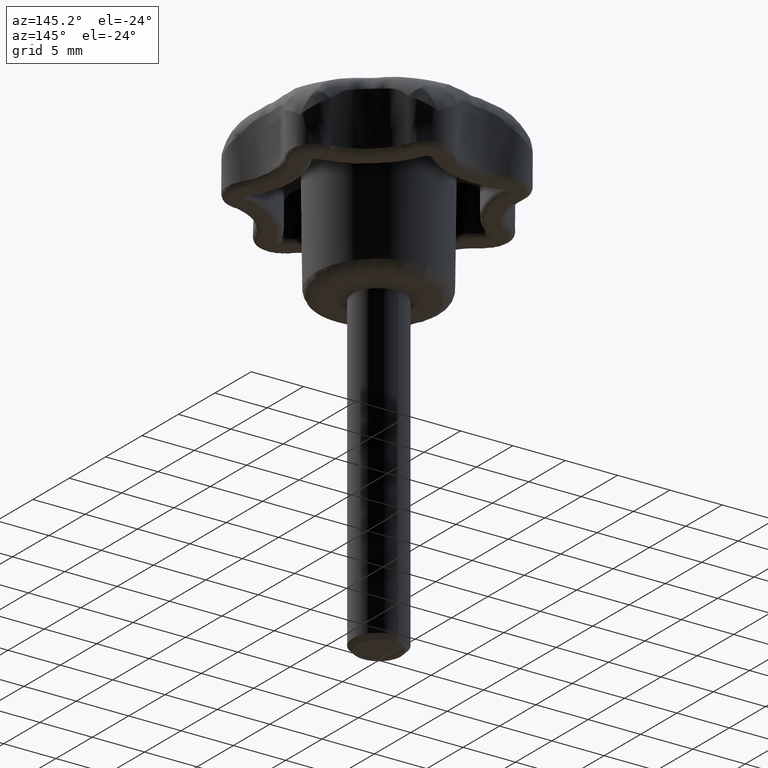
[diagram: clean part render]
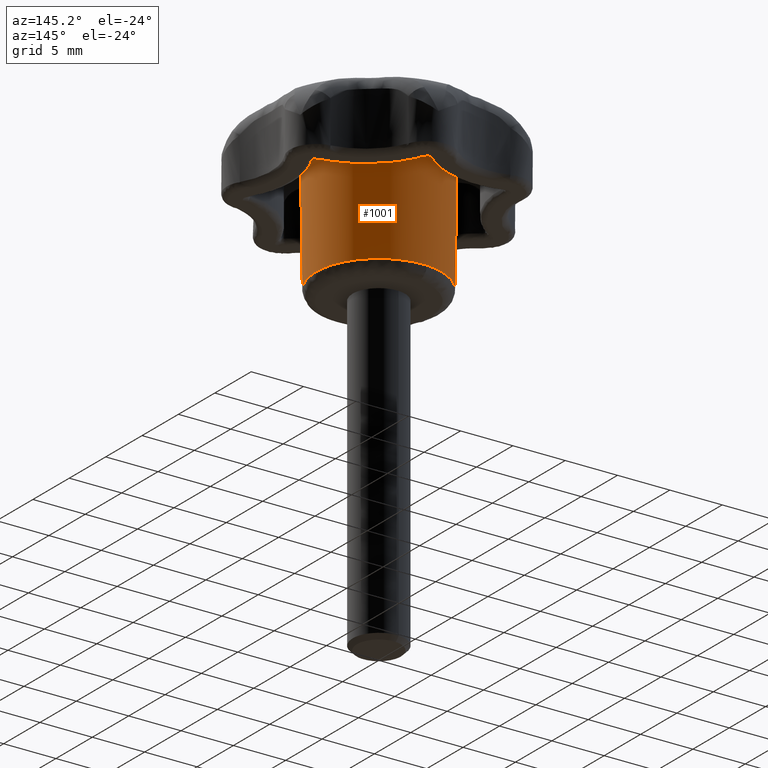
[diagram: same view with one face highlighted and labeled with its STEP entity id]
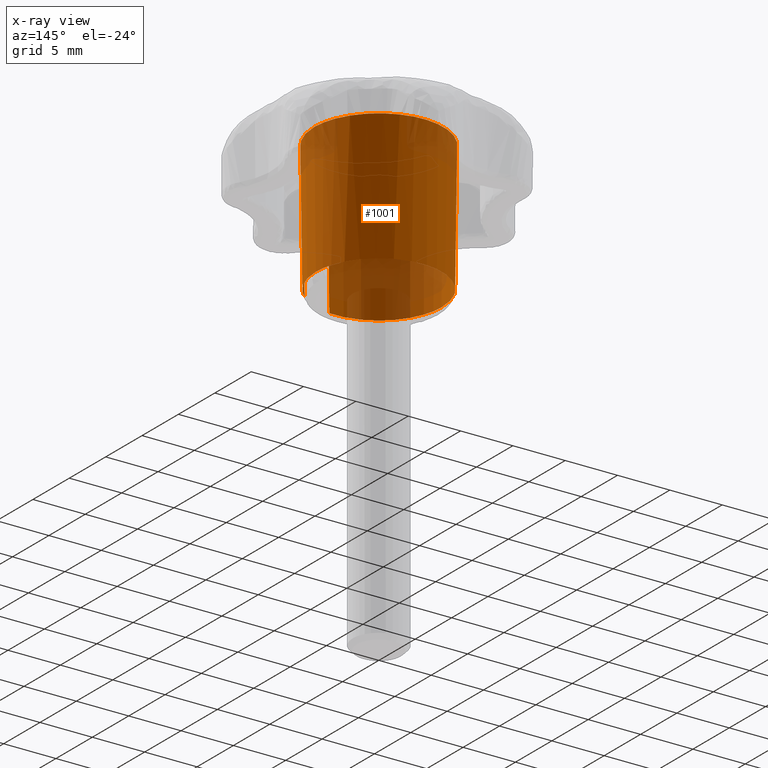
[diagram: x-ray of the same camera — body ghosted, the highlighted face saturated]
A machine part, auxiliary view. The second image highlights one B-rep face of the part: STEP entity #1001.
The next image is the same camera in x-ray: the body ghosted, the highlighted face saturated — about 29% of this face is hidden behind the body in this view.
In plain terms, the highlighted face is a freeform B-spline surface patch.
Its self-contained STEP definition (entity closure, byte-faithful):
#831=CARTESIAN_POINT('',(3.944172478707790,-4.532687497300083,-7.322148561508060));
#832=CARTESIAN_POINT('',(6.277231158324103,-2.502548459293557,-7.322148561508059));
#833=CARTESIAN_POINT('',(5.980811571360390,0.575886653655120,-7.322148561508059));
#834=CARTESIAN_POINT('',(5.404924917705270,6.556698225015510,-7.322148561508059));
#835=CARTESIAN_POINT('',(-0.575886653655120,5.980811571360390,-7.322148561508059));
#836=CARTESIAN_POINT('',(-6.556698225015510,5.404924917705270,-7.322148561508059));
#837=CARTESIAN_POINT('',(-5.980811571360390,-0.575886653655120,-7.322148561508059));
#838=CARTESIAN_POINT('',(-5.404924917705270,-6.556698225015510,-7.322148561508059));
#839=CARTESIAN_POINT('',(0.575886653655120,-5.980811571360390,-7.322148561508059));
#840=CARTESIAN_POINT('',(4.050949741576948,-4.655397132088043,5.690874260871853));
#841=CARTESIAN_POINT('',(6.447169355779006,-2.570297848074938,5.690874260871852));
#842=CARTESIAN_POINT('',(6.142725050746383,0.591477148475549,5.690874260871852));
#843=CARTESIAN_POINT('',(5.551247902270834,6.734202199221930,5.690874260871852));
#844=CARTESIAN_POINT('',(-0.591477148475549,6.142725050746383,5.690874260871852));
#845=CARTESIAN_POINT('',(-6.734202199221930,5.551247902270834,5.690874260871852));
#846=CARTESIAN_POINT('',(-6.142725050746383,-0.591477148475549,5.690874260871852));
#847=CARTESIAN_POINT('',(-5.551247902270834,-6.734202199221930,5.690874260871852));
#848=CARTESIAN_POINT('',(0.591477148475549,-6.142725050746383,5.690874260871852));
#856=(BOUNDED_SURFACE()B_SPLINE_SURFACE(2,1,((#831,#840),(#832,#841),(#833,#842),(#834,#843),(#835,#844),(#836,#845),(#837,#846),(#838,#847),(#839,#848)),.UNSPECIFIED.,.F.,.F.,.U.)B_SPLINE_SURFACE_WITH_KNOTS((3,2,2,2,3),(2,2),(0.0,6.134803480556286,16.359475948150099,26.584148415743911,36.808820883337717),(0.0,13.014039419569780),.UNSPECIFIED.)GEOMETRIC_REPRESENTATION_ITEM()RATIONAL_B_SPLINE_SURFACE(((0.859411254969543,0.859411254969543),(0.824264068711928,0.824264068711928),(1.0,1.0),(0.707106781186548,0.707106781186548),(1.0,1.0),(0.707106781186548,0.707106781186548),(1.0,1.0),(0.707106781186548,0.707106781186548),(1.0,1.0)))REPRESENTATION_ITEM('')SURFACE());
#857=CARTESIAN_POINT('',(6.012344000000111,0.0,-7.012498999999910));
#858=VERTEX_POINT('',#857);
#859=CARTESIAN_POINT('',(3.946712983802409,-4.535607674457760,-7.012499141193138));
#860=VERTEX_POINT('',#859);
#861=CARTESIAN_POINT('',(6.012344000000111,0.0,-7.012498999999910));
#862=CARTESIAN_POINT('',(6.012344000000110,-2.738174508418664,-7.012498999999910));
#863=CARTESIAN_POINT('',(3.946712983802409,-4.535607674457760,-7.012499141193138));
#871=(BOUNDED_CURVE()B_SPLINE_CURVE(2,(#861,#862,#863),.UNSPECIFIED.,.F.,.U.)B_SPLINE_CURVE_WITH_KNOTS((3,3),(0.500000000000000,0.635463011100996),.UNSPECIFIED.)CURVE()GEOMETRIC_REPRESENTATION_ITEM()RATIONAL_B_SPLINE_CURVE((1.0,0.841295210593868,0.854579450380568))REPRESENTATION_ITEM(''));
#872=EDGE_CURVE('',#858,#860,#871,.T.);
#873=ORIENTED_EDGE('',*,*,#872,.F.);
#874=CARTESIAN_POINT('',(-0.419260292708635,5.997707936092185,-7.012498999311438));
#875=VERTEX_POINT('',#874);
#876=CARTESIAN_POINT('',(-0.419260292708635,5.997707936092186,-7.012498999311440));
#877=CARTESIAN_POINT('',(-0.209885613401548,6.012344000000111,-7.012498999999910));
#878=CARTESIAN_POINT('',(0.0,6.012344000000111,-7.012498999999910));
#879=CARTESIAN_POINT('',(6.012344000000110,6.012344000000110,-7.012498999999909));
#880=CARTESIAN_POINT('',(6.012344000000111,0.0,-7.012498999999910));
#888=(BOUNDED_CURVE()B_SPLINE_CURVE(2,(#876,#877,#878,#879,#880),.UNSPECIFIED.,.F.,.U.)B_SPLINE_CURVE_WITH_KNOTS((3,2,3),(0.237833686533596,0.250000000000000,0.500000000000000),.UNSPECIFIED.)CURVE()GEOMETRIC_REPRESENTATION_ITEM()RATIONAL_B_SPLINE_CURVE((0.972879876383814,0.985746277150927,1.0,0.707106781186547,1.0))REPRESENTATION_ITEM(''));
#889=EDGE_CURVE('',#875,#858,#888,.T.);
#890=ORIENTED_EDGE('',*,*,#889,.F.);
#891=CARTESIAN_POINT('',(-6.012344000000111,0.0,-7.012498999999910));
#892=VERTEX_POINT('',#891);
#893=CARTESIAN_POINT('',(-6.012344000000111,0.0,-7.012498999999910));
#894=CARTESIAN_POINT('',(-6.012344000000111,5.606732318392219,-7.012498999999909));
#895=CARTESIAN_POINT('',(-0.419260292708635,5.997707936092185,-7.012498999311438));
#903=(BOUNDED_CURVE()B_SPLINE_CURVE(2,(#893,#894,#895),.UNSPECIFIED.,.F.,.U.)B_SPLINE_CURVE_WITH_KNOTS((3,3),(0.0,0.237833686533597),.UNSPECIFIED.)CURVE()GEOMETRIC_REPRESENTATION_ITEM()RATIONAL_B_SPLINE_CURVE((1.0,0.721360504035621,0.972879876383814))REPRESENTATION_ITEM(''));
#904=EDGE_CURVE('',#892,#875,#903,.T.);
#905=ORIENTED_EDGE('',*,*,#904,.F.);
#906=CARTESIAN_POINT('',(-6.011869232829693,-0.075551353800041,-7.012498999311493));
#907=VERTEX_POINT('',#906);
#908=CARTESIAN_POINT('',(-6.011869232829693,-0.075551353800041,-7.012498999311494));
#909=CARTESIAN_POINT('',(-6.012344000000111,-0.037777168640943,-7.012498999999909));
#910=CARTESIAN_POINT('',(-6.012344000000111,0.0,-7.012498999999910));
#918=(BOUNDED_CURVE()B_SPLINE_CURVE(2,(#908,#909,#910),.UNSPECIFIED.,.F.,.U.)B_SPLINE_CURVE_WITH_KNOTS((3,3),(0.997784295920002,1.0),.UNSPECIFIED.)CURVE()GEOMETRIC_REPRESENTATION_ITEM()RATIONAL_B_SPLINE_CURVE((0.994854295640039,0.997404141200285,1.0))REPRESENTATION_ITEM(''));
#919=EDGE_CURVE('',#907,#892,#918,.T.);
#920=ORIENTED_EDGE('',*,*,#919,.F.);
#921=CARTESIAN_POINT('',(0.576257635115548,-5.984664360873413,-7.012498999999618));
#922=VERTEX_POINT('',#921);
#923=CARTESIAN_POINT('',(0.576257635115548,-5.984664360873413,-7.012498999999619));
#924=CARTESIAN_POINT('',(0.288793591775111,-6.012344000000110,-7.012498999999909));
#925=CARTESIAN_POINT('',(0.0,-6.012344000000111,-7.012498999999910));
#926=CARTESIAN_POINT('',(-5.937261426648448,-6.012344000000110,-7.012498999999909));
#927=CARTESIAN_POINT('',(-6.011869232829693,-0.075551353800041,-7.012498999311494));
#935=(BOUNDED_CURVE()B_SPLINE_CURVE(2,(#923,#924,#925,#926,#927),.UNSPECIFIED.,.F.,.U.)B_SPLINE_CURVE_WITH_KNOTS((3,2,3),(0.733348904764013,0.750000000000000,0.997784295920001),.UNSPECIFIED.)CURVE()GEOMETRIC_REPRESENTATION_ITEM()RATIONAL_B_SPLINE_CURVE((0.963582689689856,0.980492028478250,1.0,0.709702639986264,0.994854295640036))REPRESENTATION_ITEM(''));
#936=EDGE_CURVE('',#922,#907,#935,.T.);
#937=ORIENTED_EDGE('',*,*,#936,.F.);
#938=CARTESIAN_POINT('',(0.591085733990713,-6.138777011016895,5.373483070260441));
#939=VERTEX_POINT('',#938);
#940=CARTESIAN_POINT('',(0.576257635115548,-5.984664360873413,-7.012498999999618));
#941=CARTESIAN_POINT('',(0.591085733990713,-6.138777011016895,5.373483070260441));
#942=QUASI_UNIFORM_CURVE('',1,(#940,#941),.UNSPECIFIED.,.F.,.U.);
#943=EDGE_CURVE('',#922,#939,#942,.T.);
#944=ORIENTED_EDGE('',*,*,#943,.T.);
#945=CARTESIAN_POINT('',(-6.167168361264539,0.0,5.373483460326000));
#946=VERTEX_POINT('',#945);
#947=CARTESIAN_POINT('',(0.591085733990713,-6.138777011016895,5.373483070260441));
#948=CARTESIAN_POINT('',(0.296224721354657,-6.167168361264540,5.373483460326001));
#949=CARTESIAN_POINT('',(0.0,-6.167168361264539,5.373483460326000));
#950=CARTESIAN_POINT('',(-6.167168361264539,-6.167168361264539,5.373483460325999));
#951=CARTESIAN_POINT('',(-6.167168361264539,0.0,5.373483460326000));
#959=(BOUNDED_CURVE()B_SPLINE_CURVE(2,(#947,#948,#949,#950,#951),.UNSPECIFIED.,.F.,.U.)B_SPLINE_CURVE_WITH_KNOTS((3,2,3),(0.733349214379335,0.750000000000000,1.0),.UNSPECIFIED.)CURVE()GEOMETRIC_REPRESENTATION_ITEM()RATIONAL_B_SPLINE_CURVE((0.963583318525111,0.980492391215163,1.0,0.707106781186548,1.0))REPRESENTATION_ITEM(''));
#960=EDGE_CURVE('',#939,#946,#959,.T.);
#961=ORIENTED_EDGE('',*,*,#960,.T.);
#962=CARTESIAN_POINT('',(6.167168361264539,0.0,5.373483460326000));
#963=VERTEX_POINT('',#962);
#964=CARTESIAN_POINT('',(-6.167168361264539,0.0,5.373483460326000));
#965=CARTESIAN_POINT('',(-6.167168361264539,6.167168361264539,5.373483460325999));
#966=CARTESIAN_POINT('',(0.0,6.167168361264539,5.373483460326000));
#967=CARTESIAN_POINT('',(6.167168361264539,6.167168361264539,5.373483460325999));
#968=CARTESIAN_POINT('',(6.167168361264539,0.0,5.373483460326000));
#976=(BOUNDED_CURVE()B_SPLINE_CURVE(2,(#964,#965,#966,#967,#968),.UNSPECIFIED.,.F.,.U.)B_SPLINE_CURVE_WITH_KNOTS((3,2,3),(0.0,0.250000000000000,0.500000000000000),.UNSPECIFIED.)CURVE()GEOMETRIC_REPRESENTATION_ITEM()RATIONAL_B_SPLINE_CURVE((1.0,0.707106781186548,1.0,0.707106781186548,1.0))REPRESENTATION_ITEM(''));
#977=EDGE_CURVE('',#946,#963,#976,.T.);
#978=ORIENTED_EDGE('',*,*,#977,.T.);
#979=CARTESIAN_POINT('',(4.048345286052395,-4.652404328020982,5.373483397468467));
#980=VERTEX_POINT('',#979);
#981=CARTESIAN_POINT('',(6.167168361264539,0.0,5.373483460326000));
#982=CARTESIAN_POINT('',(6.167168361264539,-2.808685186432085,5.373483460326000));
#983=CARTESIAN_POINT('',(4.048345286052396,-4.652404328020982,5.373483397468468));
#991=(BOUNDED_CURVE()B_SPLINE_CURVE(2,(#981,#982,#983),.UNSPECIFIED.,.F.,.U.)B_SPLINE_CURVE_WITH_KNOTS((3,3),(0.500000000000000,0.635462999848115),.UNSPECIFIED.)CURVE()GEOMETRIC_REPRESENTATION_ITEM()RATIONAL_B_SPLINE_CURVE((1.0,0.841295223777438,0.854579448173532))REPRESENTATION_ITEM(''));
#992=EDGE_CURVE('',#963,#980,#991,.T.);
#993=ORIENTED_EDGE('',*,*,#992,.T.);
#994=CARTESIAN_POINT('',(3.946712983802409,-4.535607674457760,-7.012499141193138));
#995=CARTESIAN_POINT('',(4.048345286052395,-4.652404328020982,5.373483397468467));
#996=QUASI_UNIFORM_CURVE('',1,(#994,#995),.UNSPECIFIED.,.F.,.U.);
#997=EDGE_CURVE('',#860,#980,#996,.T.);
#998=ORIENTED_EDGE('',*,*,#997,.F.);
#999=EDGE_LOOP('',(#873,#890,#905,#920,#937,#944,#961,#978,#993,#998));
#1000=FACE_OUTER_BOUND('',#999,.T.);
#1001=ADVANCED_FACE('',(#1000),#856,.T.);